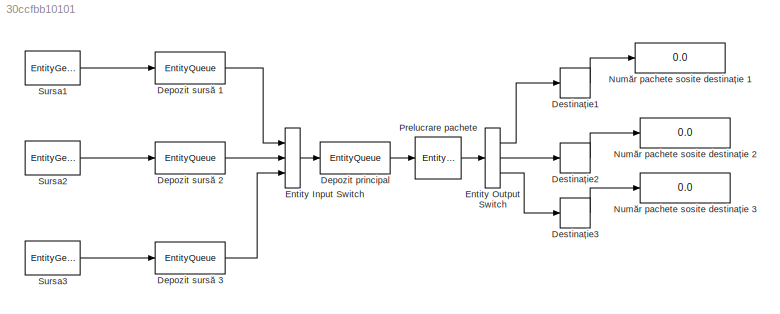
MODEL slx_30ccfbb10101
KIND model
CONFIG AbsTol = auto
CONFIG FixedStep = auto
CONFIG MaxStep = auto
CONFIG MinStep = auto
CONFIG RelTol = 1e-3
CONFIG SampleTimeConstraint = Unconstrained
CONFIG Solver = VariableStepAuto
CONFIG SolverMode = Auto
CONFIG SolverName = VariableStepAuto
CONFIG StartTime = 0.0
CONFIG StopTime = 10
BLOCK [EntityQueue] Depozit principal
  InputPortMap = u0
  InputPortMessageModes = m
  OutputPortMap = o5
  OutputPortMessageModes = m
  Ports = [1, 1]
BLOCK [EntityQueue] Depozit sursă 1
  InputPortMap = u0
  InputPortMessageModes = m
  OutputPortMap = o5
  OutputPortMessageModes = m
  Ports = [1, 1]
BLOCK [EntityQueue] Depozit sursă 2
  InputPortMap = u0
  InputPortMessageModes = m
  OutputPortMap = o5
  OutputPortMessageModes = m
  Ports = [1, 1]
BLOCK [EntityQueue] Depozit sursă 3
  InputPortMap = u0
  InputPortMessageModes = m
  OutputPortMap = o5
  OutputPortMessageModes = m
  Ports = [1, 1]
BLOCK [EntityTerminator] Destinație1
  InputPortMap = u0
  InputPortMessageModes = m
  NumberEntitiesArrived = on
  OutputPortMap = o0
  Ports = [1, 1]
BLOCK [EntityTerminator] Destinație2
  InputPortMap = u0
  InputPortMessageModes = m
  NumberEntitiesArrived = on
  OutputPortMap = o0
  Ports = [1, 1]
BLOCK [EntityTerminator] Destinație3
  InputPortMap = u0
  InputPortMessageModes = m
  NumberEntitiesArrived = on
  OutputPortMap = o0
  Ports = [1, 1]
BLOCK [EntityInputSwitch] Entity Input Switch
  InputPortMap = u1,u2,u3
  InputPortMessageModes = m,m,m
  NumberInputPorts = 3
  OutputPortMap = o0
  OutputPortMessageModes = m
  Ports = [3, 1]
BLOCK [EntityOutputSwitch] Entity Output Switch
  InputPortMap = u1
  InputPortMessageModes = m
  NumberOutputPorts = 3
  OutputPortMap = o0,o1,o2
  OutputPortMessageModes = m,m,m
  Ports = [1, 3]
  SwitchAttributeName = IPdestinatie
  SwitchingCriterion = From attribute
BLOCK [Display] Număr pachete sosite destinație 1
  Decimation = 1
  Ports = [1]
BLOCK [Display] Număr pachete sosite destinație 2
  Decimation = 1
  Ports = [1]
BLOCK [Display] Număr pachete sosite destinație 3
  Decimation = 1
  Ports = [1]
BLOCK [EntityServer] Prelucrare pachete 
  Capacity = 1
  InputPortMap = u2
  InputPortMessageModes = m
  OutputPortMap = o9
  OutputPortMessageModes = m
  Ports = [1, 1]
  ServiceTimeAttributeName = lungimeDate
  ServiceTimeSource = Attribute
BLOCK [EntityGenerator] Sursa1
  AttributeInitialValue = 1|3|6 + 4 * rand
  AttributeName = IPsursa|IPdestinatie|lungimeDate
  EntityType = Structured
  EntityTypeName = Entity
  IntergenerationTimeAction = persistent init\nif (isempty(init))\n    rng(122);\n    init = true;\nend\ndt = exprnd(0.008);
  OutputPortMap = o3
  OutputPortMessageModes = m
  Ports = [0, 1]
  TimeSource = MATLAB action
BLOCK [EntityGenerator] Sursa2
  AttributeInitialValue = 2|1|6 + 4 * rand
  AttributeName = IPsursa|IPdestinatie|lungimeDate
  EntityType = Structured
  EntityTypeName = Entity
  IntergenerationTimeAction = persistent init\nif (isempty(init))\n    rng(123);\n    init = true;\nend\ndt = exprnd(0.008);
  OutputPortMap = o3
  OutputPortMessageModes = m
  Ports = [0, 1]
  TimeSource = MATLAB action
BLOCK [EntityGenerator] Sursa3
  AttributeInitialValue = 3|2|6 + 4 * rand
  AttributeName = IPsursa|IPdestinatie|lungimeDate
  EntityType = Structured
  EntityTypeName = Entity
  IntergenerationTimeAction = persistent init\nif (isempty(init))\n    rng(125);\n    init = true;\nend\ndt = exprnd(0.008);
  OutputPortMap = o3
  OutputPortMessageModes = m
  Ports = [0, 1]
  TimeSource = MATLAB action
LINE Depozit principal:1 -> Prelucrare pachete :1
LINE Depozit sursă 1:1 -> Entity Input Switch:1
LINE Depozit sursă 2:1 -> Entity Input Switch:2
LINE Depozit sursă 3:1 -> Entity Input Switch:3
LINE Destinație1:1 -> Număr pachete sosite destinație 1:1
LINE Destinație2:1 -> Număr pachete sosite destinație 2:1
LINE Destinație3:1 -> Număr pachete sosite destinație 3:1
LINE Entity Input Switch:1 -> Depozit principal:1
LINE Entity Output Switch:1 -> Destinație1:1
LINE Entity Output Switch:2 -> Destinație2:1
LINE Entity Output Switch:3 -> Destinație3:1
LINE Prelucrare pachete :1 -> Entity Output Switch:1
LINE Sursa1:1 -> Depozit sursă 1:1
LINE Sursa2:1 -> Depozit sursă 2:1
LINE Sursa3:1 -> Depozit sursă 3:1
